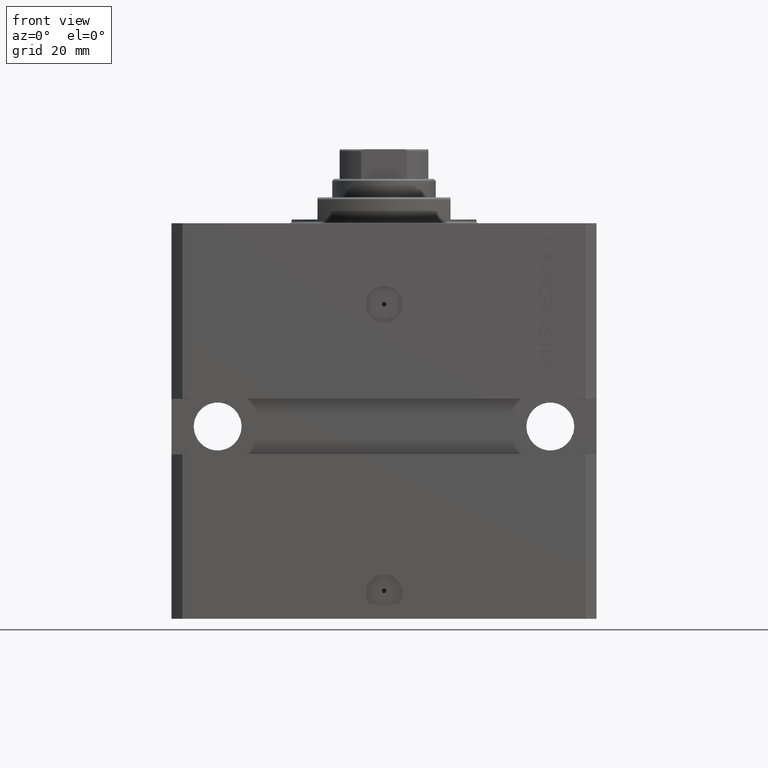
[diagram: clean part render]
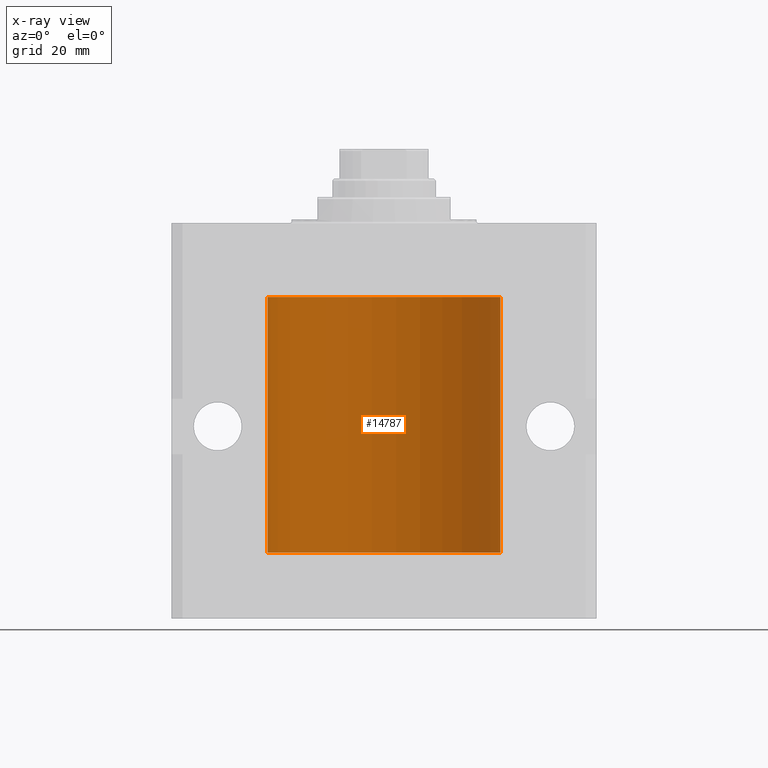
[diagram: x-ray — body ghosted, one internal face saturated and labeled with its STEP entity id]
A machine part, front view, then the same camera in x-ray: the body is ghosted and one INTERNAL B-rep face — a face not visible from any outside direction — is saturated and labeled: STEP entity #14787.
In plain terms, the highlighted cylindrical surface (partial cylindrical patch) has radius 31.5 mm, axis along (0, 0, 1).
Its self-contained STEP definition (entity closure, byte-faithful):
#33 = VERTEX_POINT ( 'NONE', #22136 ) ;
#694 = CARTESIAN_POINT ( 'NONE',  ( 31.49379899281760942, 0.6250000000003405054, -86.16310352862700483 ) ) ;
#732 = CARTESIAN_POINT ( 'NONE',  ( 0.000000000000000000, 0.000000000000000000, -89.09999999999999432 ) ) ;
#1015 = AXIS2_PLACEMENT_3D ( 'NONE', #41246, #14888, #37765 ) ;
#1655 = LINE ( 'NONE', #28280, #2673 ) ;
#2604 = CIRCLE ( 'NONE', #1015, 31.50000000000000000 ) ;
#2673 = VECTOR ( 'NONE', #43440, 1000.000000000000000 ) ;
#2869 = DIRECTION ( 'NONE',  ( -0.000000000000000000, -0.000000000000000000, 1.000000000000000000 ) ) ;
#3035 = ORIENTED_EDGE ( 'NONE', *, *, #38931, .T. ) ;
#3239 = ORIENTED_EDGE ( 'NONE', *, *, #17706, .T. ) ;
#4184 = CARTESIAN_POINT ( 'NONE',  ( -31.50000000000000000, 0.08259258789479792529, -28.37500000000000355 ) ) ;
#4262 = VERTEX_POINT ( 'NONE', #15201 ) ;
#4264 = B_SPLINE_CURVE_WITH_KNOTS ( 'NONE', 3,
 ( #23092, #19867, #19379, #38256, #12146, #22855, #694, #15874 ),
 .UNSPECIFIED., .F., .F.,
 ( 4, 2, 2, 4 ),
 ( 2.422664849601941982E-18, 0.0002443157997801665674, 0.0004886315995603306411, 0.0009772631991206588969 ),
 .UNSPECIFIED. ) ;
#4942 = EDGE_CURVE ( 'NONE', #40594, #33, #27415, .T. ) ;
#5012 = B_SPLINE_CURVE_WITH_KNOTS ( 'NONE', 3,
 ( #38509, #4184, #34543, #15626, #11905, #15875, #25228, #35931, #43633, #40394, #36423, #17774 ),
 .UNSPECIFIED., .F., .F.,
 ( 4, 2, 2, 2, 2, 4 ),
 ( 5.322949309211407119E-19, 0.0002442604562134704257, 0.0004885209124269403094, 0.0009770418248538795345, 0.001465562737280818977, 0.001954083649707758635 ),
 .UNSPECIFIED. ) ;
#5115 = CARTESIAN_POINT ( 'NONE',  ( 31.50000000000000000, -2.492939093807799249E-15, -86.62500000000000000 ) ) ;
#5702 = CARTESIAN_POINT ( 'NONE',  ( -31.50000000000000000, 6.762885151983182724E-15, -28.37500000000000355 ) ) ;
#6381 = ORIENTED_EDGE ( 'NONE', *, *, #22605, .T. ) ;
#6833 = CARTESIAN_POINT ( 'NONE',  ( 31.50000000000000000, -1.286676774952591455E-15, -29.62500000000000000 ) ) ;
#8764 = CARTESIAN_POINT ( 'NONE',  ( 31.49526225382467359, 0.5586305680866376910, -28.67476160622149806 ) ) ;
#9395 = VERTEX_POINT ( 'NONE', #22950 ) ;
#9989 = CARTESIAN_POINT ( 'NONE',  ( -31.49999999999998579, 0.1631661150515255343, -86.62499999999982947 ) ) ;
#10164 = CARTESIAN_POINT ( 'NONE',  ( -31.50000000000000000, 3.857637417314162689E-15, -89.09999999999999432 ) ) ;
#10817 = CARTESIAN_POINT ( 'NONE',  ( 31.49379899281745665, 0.6250000000082756024, -28.99999999999905853 ) ) ;
#11011 = ORIENTED_EDGE ( 'NONE', *, *, #22508, .F. ) ;
#11466 = VECTOR ( 'NONE', #44241, 1000.000000000000000 ) ;
#11709 = CARTESIAN_POINT ( 'NONE',  ( -31.50000000000000000, 3.857637417314162689E-15, -20.00000000000000355 ) ) ;
#11905 = CARTESIAN_POINT ( 'NONE',  ( -31.49770767031179730, 0.3843648832734374854, -28.50046081259655395 ) ) ;
#12046 = EDGE_LOOP ( 'NONE', ( #42872, #15195, #14295, #6381, #27149, #33879, #46779, #35074, #49065, #3239, #23218, #3035, #11011, #28915 ) ) ;
#12146 = CARTESIAN_POINT ( 'NONE',  ( 31.49770674525946390, 0.3844410175904657834, -86.49948347834465778 ) ) ;
#12273 = CARTESIAN_POINT ( 'NONE',  ( 31.50000000000000000, 0.000000000000000000, -89.09999999999999432 ) ) ;
#12347 = CARTESIAN_POINT ( 'NONE',  ( 31.49526225382467359, 0.5586305680866429091, -85.67476160622149450 ) ) ;
#13022 = EDGE_CURVE ( 'NONE', #24208, #33, #17669, .T. ) ;
#14061 = DIRECTION ( 'NONE',  ( 1.000000000000000000, 0.000000000000000000, 0.000000000000000000 ) ) ;
#14295 = ORIENTED_EDGE ( 'NONE', *, *, #46295, .T. ) ;
#14437 = DIRECTION ( 'NONE',  ( -0.000000000000000000, -0.000000000000000000, 1.000000000000000000 ) ) ;
#14787 = ADVANCED_FACE ( 'NONE', ( #20392 ), #15666, .F. ) ;
#14888 = DIRECTION ( 'NONE',  ( 0.000000000000000000, 0.000000000000000000, 1.000000000000000000 ) ) ;
#14939 = LINE ( 'NONE', #48249, #29187 ) ;
#14957 = VECTOR ( 'NONE', #38875, 1000.000000000000000 ) ;
#15195 = ORIENTED_EDGE ( 'NONE', *, *, #15752, .F. ) ;
#15201 = CARTESIAN_POINT ( 'NONE',  ( 31.50000000000006395, 3.442404755096224483E-13, -85.37499999999675993 ) ) ;
#15626 = CARTESIAN_POINT ( 'NONE',  ( -31.49851563474691929, 0.3150284575672404608, -28.45401791159624949 ) ) ;
#15666 = CYLINDRICAL_SURFACE ( 'NONE', #21645, 31.50000000000000000 ) ;
#15752 = EDGE_CURVE ( 'NONE', #47630, #24208, #2604, .T. ) ;
#15874 = CARTESIAN_POINT ( 'NONE',  ( 31.49379899281745665, 0.6250000000082825968, -85.99999999999904787 ) ) ;
#15875 = CARTESIAN_POINT ( 'NONE',  ( -31.49528028230854559, 0.5573323339569596913, -28.67349008819320488 ) ) ;
#16485 = CARTESIAN_POINT ( 'NONE',  ( -31.50000000000000000, 5.506494294563112346E-16, -85.37500000000000000 ) ) ;
#16960 = CIRCLE ( 'NONE', #23317, 31.50000000000000000 ) ;
#17224 = CARTESIAN_POINT ( 'NONE',  ( -31.49380014137585704, 0.6249421240571518821, -85.83671479190290654 ) ) ;
#17266 = CARTESIAN_POINT ( 'NONE',  ( -31.50000000000000000, 5.506494294563112346E-16, -85.37500000000000000 ) ) ;
#17302 = VECTOR ( 'NONE', #2869, 1000.000000000000000 ) ;
#17467 = CARTESIAN_POINT ( 'NONE',  ( -31.49770767031179730, 0.3843648832734377629, -85.50046081259654329 ) ) ;
#17667 = EDGE_CURVE ( 'NONE', #41225, #42172, #38316, .T. ) ;
#17669 = LINE ( 'NONE', #40533, #21579 ) ;
#17706 = EDGE_CURVE ( 'NONE', #17784, #21325, #16960, .T. ) ;
#17774 = CARTESIAN_POINT ( 'NONE',  ( -31.50000000000006395, 3.480980906124966778E-13, -29.62500000000323297 ) ) ;
#17784 = VERTEX_POINT ( 'NONE', #30457 ) ;
#18290 = CARTESIAN_POINT ( 'NONE',  ( 31.49527883250257432, 0.5574151849338060405, -29.32638608454755058 ) ) ;
#19379 = CARTESIAN_POINT ( 'NONE',  ( 31.49966575203785268, 0.1636755595825563903, -86.60873030821187513 ) ) ;
#19867 = CARTESIAN_POINT ( 'NONE',  ( 31.50000000000000000, 0.08261130139621999935, -86.62500000000000000 ) ) ;
#20061 = CARTESIAN_POINT ( 'NONE',  ( 31.50000000000006395, 3.442404755096224483E-13, -85.37499999999675993 ) ) ;
#20392 = FACE_OUTER_BOUND ( 'NONE', #12046, .T. ) ;
#20461 = CARTESIAN_POINT ( 'NONE',  ( 31.49379899281745665, 0.6250000000082756024, -28.99999999999905853 ) ) ;
#20702 = CARTESIAN_POINT ( 'NONE',  ( 31.50000000000000000, 0.1631291455194386619, -28.37500000000015277 ) ) ;
#21200 = CARTESIAN_POINT ( 'NONE',  ( -31.49379784581975272, 0.6250577973157669387, -86.16284184848845484 ) ) ;
#21325 = VERTEX_POINT ( 'NONE', #11709 ) ;
#21579 = VECTOR ( 'NONE', #48735, 1000.000000000000000 ) ;
#21645 = AXIS2_PLACEMENT_3D ( 'NONE', #732, #42268, #34821 ) ;
#21835 = EDGE_CURVE ( 'NONE', #22449, #21325, #1655, .T. ) ;
#22136 = CARTESIAN_POINT ( 'NONE',  ( -31.50000000000006395, 3.480981129463732167E-13, -86.62500000000324007 ) ) ;
#22449 = VERTEX_POINT ( 'NONE', #5702 ) ;
#22508 = EDGE_CURVE ( 'NONE', #40594, #48549, #30073, .T. ) ;
#22605 = EDGE_CURVE ( 'NONE', #43120, #9395, #4264, .T. ) ;
#22855 = CARTESIAN_POINT ( 'NONE',  ( 31.49527883250257432, 0.5574151849338155884, -86.32638608454752216 ) ) ;
#22950 = CARTESIAN_POINT ( 'NONE',  ( 31.49379899281745665, 0.6250000000082825968, -85.99999999999904787 ) ) ;
#23092 = CARTESIAN_POINT ( 'NONE',  ( 31.50000000000000000, -2.492939093807799249E-15, -86.62500000000000000 ) ) ;
#23218 = ORIENTED_EDGE ( 'NONE', *, *, #21835, .F. ) ;
#23317 = AXIS2_PLACEMENT_3D ( 'NONE', #26486, #48113, #14061 ) ;
#23933 = CARTESIAN_POINT ( 'NONE',  ( 31.50000000000006395, 3.442404531757459093E-13, -28.37499999999677058 ) ) ;
#24208 = VERTEX_POINT ( 'NONE', #29806 ) ;
#24433 = CARTESIAN_POINT ( 'NONE',  ( -31.49853548231893541, 0.3253851488062163844, -86.55855470525682449 ) ) ;
#24508 = CARTESIAN_POINT ( 'NONE',  ( 31.50000000000000000, 0.1631291455194407158, -85.37500000000014211 ) ) ;
#25010 = EDGE_CURVE ( 'NONE', #42172, #33430, #35532, .T. ) ;
#25228 = CARTESIAN_POINT ( 'NONE',  ( -31.49380014137586414, 0.6249421240571522151, -28.83671479190292075 ) ) ;
#26010 = CARTESIAN_POINT ( 'NONE',  ( 31.50000000000000000, 0.000000000000000000, -89.09999999999999432 ) ) ;
#26237 = CARTESIAN_POINT ( 'NONE',  ( 31.49379899281760231, 0.6250000000003351763, -29.16310352862698352 ) ) ;
#26486 = CARTESIAN_POINT ( 'NONE',  ( 0.000000000000000000, 0.000000000000000000, -20.00000000000000355 ) ) ;
#27149 = ORIENTED_EDGE ( 'NONE', *, *, #36626, .T. ) ;
#27189 = LINE ( 'NONE', #12273, #14957 ) ;
#27415 = B_SPLINE_CURVE_WITH_KNOTS ( 'NONE', 3,
 ( #16485, #31656, #44065, #43087, #17467, #39599, #17224, #21200, #36600, #24433, #9989, #32387 ),
 .UNSPECIFIED., .F., .F.,
 ( 4, 2, 2, 2, 2, 4 ),
 ( 3.077629557998139151E-18, 0.0002442604562134844661, 0.0004885209124269657881, 0.0009770418248538990501, 0.001465562737280832421, 0.001954083649707765574 ),
 .UNSPECIFIED. ) ;
#27993 = CARTESIAN_POINT ( 'NONE',  ( 31.49379899281762363, 0.6249999999996236344, -85.83697036533064306 ) ) ;
#28280 = CARTESIAN_POINT ( 'NONE',  ( -31.50000000000000000, 3.857637417314162689E-15, -89.09999999999999432 ) ) ;
#28915 = ORIENTED_EDGE ( 'NONE', *, *, #4942, .T. ) ;
#28992 = EDGE_CURVE ( 'NONE', #33430, #17784, #27189, .T. ) ;
#29000 = CARTESIAN_POINT ( 'NONE',  ( 31.49379899281745665, 0.6250000000082756024, -28.99999999999905853 ) ) ;
#29187 = VECTOR ( 'NONE', #14437, 1000.000000000000000 ) ;
#29722 = CARTESIAN_POINT ( 'NONE',  ( 31.49770674525947101, 0.3844410175904570126, -29.49948347834465068 ) ) ;
#29806 = CARTESIAN_POINT ( 'NONE',  ( -31.50000000000000000, 3.857637417314162689E-15, -89.09999999999999432 ) ) ;
#30073 = LINE ( 'NONE', #10164, #11466 ) ;
#30457 = CARTESIAN_POINT ( 'NONE',  ( 31.50000000000000000, 0.000000000000000000, -20.00000000000000355 ) ) ;
#31231 = CARTESIAN_POINT ( 'NONE',  ( -31.50000000000006395, 3.480980906124966778E-13, -29.62500000000323297 ) ) ;
#31656 = CARTESIAN_POINT ( 'NONE',  ( -31.49999999999998579, 0.08259258789479451135, -85.37499999999997158 ) ) ;
#31879 = CARTESIAN_POINT ( 'NONE',  ( 31.49379899281762363, 0.6249999999996151967, -28.83697036533062885 ) ) ;
#32387 = CARTESIAN_POINT ( 'NONE',  ( -31.50000000000006395, 3.480981129463732167E-13, -86.62500000000324007 ) ) ;
#33430 = VERTEX_POINT ( 'NONE', #43256 ) ;
#33879 = ORIENTED_EDGE ( 'NONE', *, *, #46942, .T. ) ;
#34543 = CARTESIAN_POINT ( 'NONE',  ( -31.49966591610108679, 0.1636376958180631447, -28.39126189995838700 ) ) ;
#34821 = DIRECTION ( 'NONE',  ( 1.000000000000000000, 0.000000000000000000, 0.000000000000000000 ) ) ;
#34979 = CARTESIAN_POINT ( 'NONE',  ( 31.49379899281745665, 0.6250000000082825968, -85.99999999999904787 ) ) ;
#35074 = ORIENTED_EDGE ( 'NONE', *, *, #25010, .T. ) ;
#35532 = B_SPLINE_CURVE_WITH_KNOTS ( 'NONE', 3,
 ( #20461, #31879, #8764, #43564, #20702, #23933 ),
 .UNSPECIFIED., .F., .F.,
 ( 4, 2, 4 ),
 ( 0.0009772631991206452359, 0.001465673424414174614, 0.001954083649707703992 ),
 .UNSPECIFIED. ) ;
#35931 = CARTESIAN_POINT ( 'NONE',  ( -31.49379784581975983, 0.6250577973157599443, -29.16284184848848327 ) ) ;
#36423 = CARTESIAN_POINT ( 'NONE',  ( -31.50000000000000711, 0.1631661150515227865, -29.62499999999986500 ) ) ;
#36600 = CARTESIAN_POINT ( 'NONE',  ( -31.49526081842315151, 0.5587119163470755101, -86.32511513093052713 ) ) ;
#36626 = EDGE_CURVE ( 'NONE', #9395, #4262, #41418, .T. ) ;
#37179 = CARTESIAN_POINT ( 'NONE',  ( 31.49851501686590893, 0.3150934959385772727, -29.54594721883858099 ) ) ;
#37765 = DIRECTION ( 'NONE',  ( 1.000000000000000000, 0.000000000000000000, 0.000000000000000000 ) ) ;
#38256 = CARTESIAN_POINT ( 'NONE',  ( 31.49851501686590893, 0.3150934959385818801, -86.54594721883857744 ) ) ;
#38316 = B_SPLINE_CURVE_WITH_KNOTS ( 'NONE', 3,
 ( #6833, #44884, #45374, #37179, #29722, #18290, #26237, #10817 ),
 .UNSPECIFIED., .F., .F.,
 ( 4, 2, 2, 4 ),
 ( 1.824539386392990385E-18, 0.0002443157997801608753, 0.0004886315995603199075, 0.0009772631991206452359 ),
 .UNSPECIFIED. ) ;
#38509 = CARTESIAN_POINT ( 'NONE',  ( -31.50000000000000000, 6.762885151983182724E-15, -28.37500000000000355 ) ) ;
#38875 = DIRECTION ( 'NONE',  ( -0.000000000000000000, -0.000000000000000000, 1.000000000000000000 ) ) ;
#38931 = EDGE_CURVE ( 'NONE', #22449, #48549, #5012, .T. ) ;
#39036 = CARTESIAN_POINT ( 'NONE',  ( 31.50000000000000000, -1.286676774952591455E-15, -29.62500000000000000 ) ) ;
#39430 = CARTESIAN_POINT ( 'NONE',  ( 31.49853627283156499, 0.3253078817183396310, -85.44140989403643971 ) ) ;
#39599 = CARTESIAN_POINT ( 'NONE',  ( -31.49528028230855270, 0.5573323339569610235, -85.67349008819323330 ) ) ;
#39951 = CARTESIAN_POINT ( 'NONE',  ( 31.50000000000000000, 0.000000000000000000, -89.09999999999999432 ) ) ;
#40394 = CARTESIAN_POINT ( 'NONE',  ( -31.49853548231893541, 0.3253851488062238784, -29.55855470525682094 ) ) ;
#40533 = CARTESIAN_POINT ( 'NONE',  ( -31.50000000000000000, 3.857637417314162689E-15, -89.09999999999999432 ) ) ;
#40594 = VERTEX_POINT ( 'NONE', #17266 ) ;
#41225 = VERTEX_POINT ( 'NONE', #39036 ) ;
#41246 = CARTESIAN_POINT ( 'NONE',  ( 0.000000000000000000, 0.000000000000000000, -89.09999999999999432 ) ) ;
#41418 = B_SPLINE_CURVE_WITH_KNOTS ( 'NONE', 3,
 ( #34979, #27993, #12347, #39430, #24508, #20061 ),
 .UNSPECIFIED., .F., .F.,
 ( 4, 2, 4 ),
 ( 0.0009772631991206588969, 0.001465673424414194563, 0.001954083649707730446 ),
 .UNSPECIFIED. ) ;
#42172 = VERTEX_POINT ( 'NONE', #29000 ) ;
#42268 = DIRECTION ( 'NONE',  ( -0.000000000000000000, -0.000000000000000000, 1.000000000000000000 ) ) ;
#42872 = ORIENTED_EDGE ( 'NONE', *, *, #13022, .F. ) ;
#43087 = CARTESIAN_POINT ( 'NONE',  ( -31.49851563474691218, 0.3150284575672409049, -85.45401791159625304 ) ) ;
#43120 = VERTEX_POINT ( 'NONE', #5115 ) ;
#43256 = CARTESIAN_POINT ( 'NONE',  ( 31.50000000000006395, 3.442404531757459093E-13, -28.37499999999677058 ) ) ;
#43440 = DIRECTION ( 'NONE',  ( -0.000000000000000000, -0.000000000000000000, 1.000000000000000000 ) ) ;
#43564 = CARTESIAN_POINT ( 'NONE',  ( 31.49853627283156499, 0.3253078817183363558, -28.44140989403645747 ) ) ;
#43633 = CARTESIAN_POINT ( 'NONE',  ( -31.49526081842315151, 0.5587119163470772865, -29.32511513093050937 ) ) ;
#44065 = CARTESIAN_POINT ( 'NONE',  ( -31.49966591610109390, 0.1636376958180634222, -85.39126189995840832 ) ) ;
#44167 = LINE ( 'NONE', #26010, #17302 ) ;
#44241 = DIRECTION ( 'NONE',  ( -0.000000000000000000, -0.000000000000000000, 1.000000000000000000 ) ) ;
#44884 = CARTESIAN_POINT ( 'NONE',  ( 31.50000000000000711, 0.08261130139621915280, -29.62499999999999289 ) ) ;
#45374 = CARTESIAN_POINT ( 'NONE',  ( 31.49966575203784558, 0.1636755595825546972, -29.60873030821186802 ) ) ;
#46295 = EDGE_CURVE ( 'NONE', #47630, #43120, #14939, .T. ) ;
#46779 = ORIENTED_EDGE ( 'NONE', *, *, #17667, .T. ) ;
#46942 = EDGE_CURVE ( 'NONE', #4262, #41225, #44167, .T. ) ;
#47630 = VERTEX_POINT ( 'NONE', #39951 ) ;
#48113 = DIRECTION ( 'NONE',  ( 0.000000000000000000, 0.000000000000000000, 1.000000000000000000 ) ) ;
#48249 = CARTESIAN_POINT ( 'NONE',  ( 31.50000000000000000, 0.000000000000000000, -89.09999999999999432 ) ) ;
#48549 = VERTEX_POINT ( 'NONE', #31231 ) ;
#48735 = DIRECTION ( 'NONE',  ( -0.000000000000000000, -0.000000000000000000, 1.000000000000000000 ) ) ;
#49065 = ORIENTED_EDGE ( 'NONE', *, *, #28992, .T. ) ;